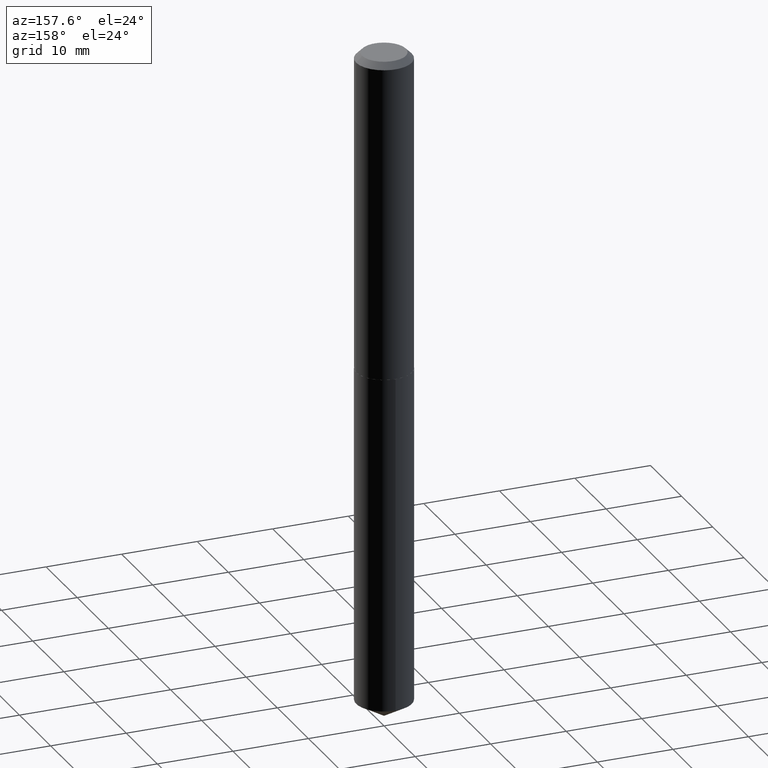
[diagram: clean part render]
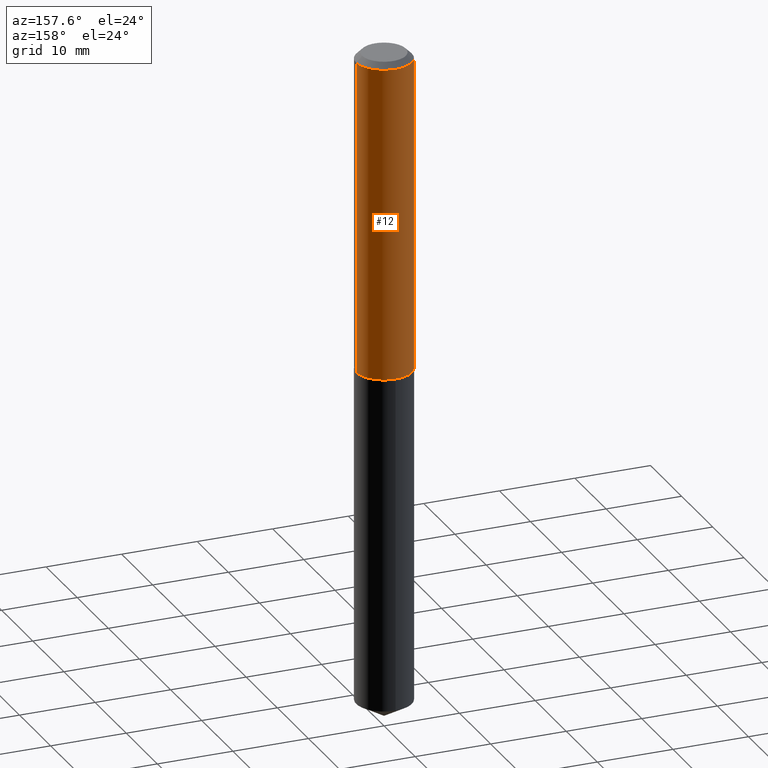
[diagram: same view with one face highlighted and labeled with its STEP entity id]
A machine part, auxiliary view. The second image highlights one B-rep face of the part: STEP entity #12.
In plain terms, the highlighted cylindrical surface (edge-blend (fillet) strip) has radius 3.683 mm, axis along (-0, 0, 1).
Its self-contained STEP definition (entity closure, byte-faithful):
#9 = EDGE_LOOP ( 'NONE', ( #184, #337, #194, #181 ) ) ;
#12 = ADVANCED_FACE ( 'NONE', ( #258 ), #369, .T. ) ;
#28 = EDGE_CURVE ( 'NONE', #221, #129, #307, .T. ) ;
#31 = CIRCLE ( 'NONE', #293, 0.1450000000000001843 ) ;
#32 = EDGE_CURVE ( 'NONE', #221, #188, #31, .T. ) ;
#39 = DIRECTION ( 'NONE',  ( 1.000000000000000000, -6.982962677686270655E-15, 0.000000000000000000 ) ) ;
#54 = CARTESIAN_POINT ( 'NONE',  ( 0.1450000000000001843, -6.824100276768925663E-15, -1.664499999999999869 ) ) ;
#71 = AXIS2_PLACEMENT_3D ( 'NONE', #228, #124, #140 ) ;
#90 = CIRCLE ( 'NONE', #71, 0.1449999999999999900 ) ;
#95 = EDGE_CURVE ( 'NONE', #188, #245, #320, .T. ) ;
#98 = AXIS2_PLACEMENT_3D ( 'NONE', #108, #343, #110 ) ;
#103 = EDGE_CURVE ( 'NONE', #129, #245, #90, .T. ) ;
#104 = CARTESIAN_POINT ( 'NONE',  ( 0.1450000000000001010, -1.012529588264509344E-15, 7.070456324904111664E-30 ) ) ;
#108 = CARTESIAN_POINT ( 'NONE',  ( 0.000000000000000000, 0.000000000000000000, 0.000000000000000000 ) ) ;
#110 = DIRECTION ( 'NONE',  ( 1.000000000000000000, -6.982962677686266711E-15, 4.876176775795935793E-29 ) ) ;
#124 = DIRECTION ( 'NONE',  ( -2.445468806185136597E-29, 3.491481338843145583E-15, 1.000000000000000000 ) ) ;
#129 = VERTEX_POINT ( 'NONE', #172 ) ;
#140 = DIRECTION ( 'NONE',  ( 1.000000000000000000, -6.982962677686266711E-15, 0.000000000000000000 ) ) ;
#169 = CARTESIAN_POINT ( 'NONE',  ( -0.1450000000000001843, -4.781283721652268754E-15, -1.664499999999999869 ) ) ;
#172 = CARTESIAN_POINT ( 'NONE',  ( 0.1449999999999999900, -1.121638380103357655E-15, -0.03125000000000021511 ) ) ;
#181 = ORIENTED_EDGE ( 'NONE', *, *, #28, .F. ) ;
#184 = ORIENTED_EDGE ( 'NONE', *, *, #32, .T. ) ;
#188 = VERTEX_POINT ( 'NONE', #169 ) ;
#194 = ORIENTED_EDGE ( 'NONE', *, *, #103, .F. ) ;
#204 = VECTOR ( 'NONE', #305, 39.37007874015748143 ) ;
#221 = VERTEX_POINT ( 'NONE', #54 ) ;
#223 = CARTESIAN_POINT ( 'NONE',  ( 4.070482827895159789E-29, -5.811570688504414939E-15, -1.664499999999999869 ) ) ;
#228 = CARTESIAN_POINT ( 'NONE',  ( 7.642090019328604414E-31, -1.091087918388490513E-16, -0.03125000000000021511 ) ) ;
#245 = VERTEX_POINT ( 'NONE', #380 ) ;
#258 = FACE_OUTER_BOUND ( 'NONE', #9, .T. ) ;
#293 = AXIS2_PLACEMENT_3D ( 'NONE', #223, #311, #39 ) ;
#305 = DIRECTION ( 'NONE',  ( -2.445468806185136877E-29, 3.491481338843145188E-15, 1.000000000000000000 ) ) ;
#307 = LINE ( 'NONE', #104, #204 ) ;
#311 = DIRECTION ( 'NONE',  ( -2.445468806185136597E-29, 3.491481338843145583E-15, 1.000000000000000000 ) ) ;
#316 = CARTESIAN_POINT ( 'NONE',  ( -0.1450000000000001010, 1.030286966852145987E-15, -7.132455880869617335E-30 ) ) ;
#320 = LINE ( 'NONE', #316, #366 ) ;
#323 = DIRECTION ( 'NONE',  ( -2.445468806185136877E-29, 3.491481338843145188E-15, 1.000000000000000000 ) ) ;
#337 = ORIENTED_EDGE ( 'NONE', *, *, #95, .T. ) ;
#343 = DIRECTION ( 'NONE',  ( -2.445468806185136597E-29, 3.491481338843145583E-15, 1.000000000000000000 ) ) ;
#366 = VECTOR ( 'NONE', #323, 39.37007874015748143 ) ;
#369 = CYLINDRICAL_SURFACE ( 'NONE', #98, 0.1450000000000001010 ) ;
#380 = CARTESIAN_POINT ( 'NONE',  ( -0.1449999999999999900, -1.930052773319485835E-15, -0.03125000000000021511 ) ) ;